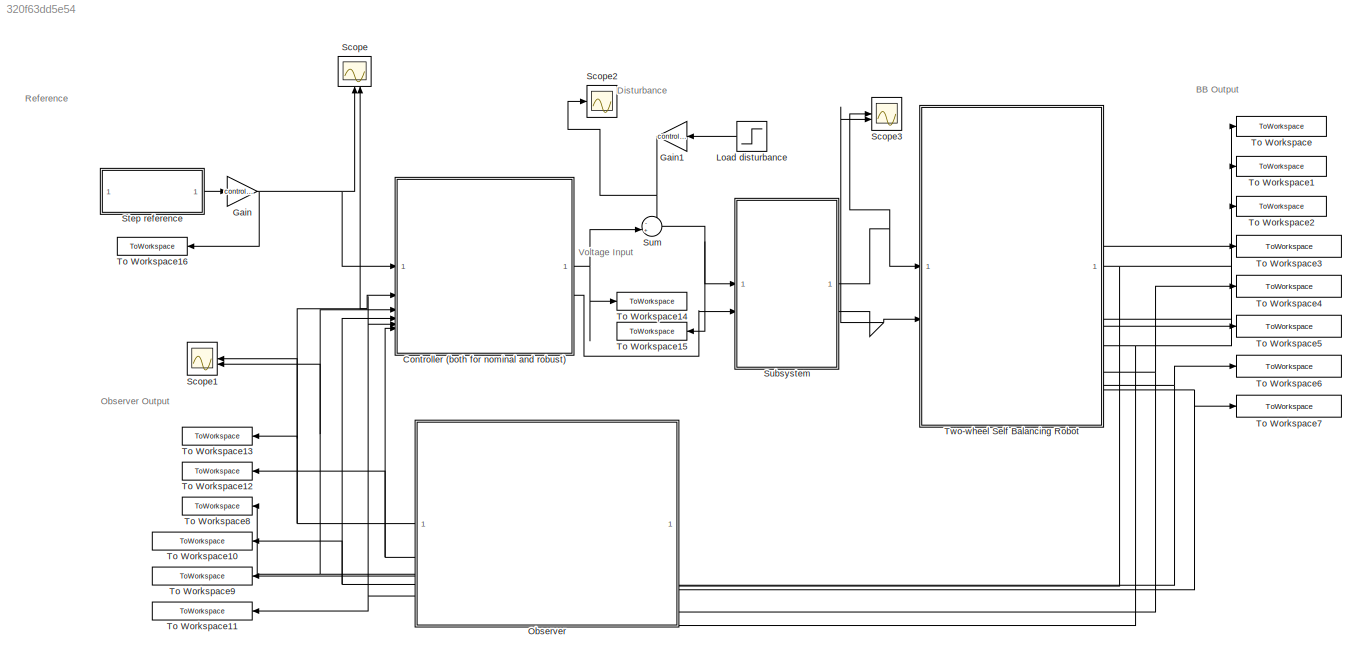
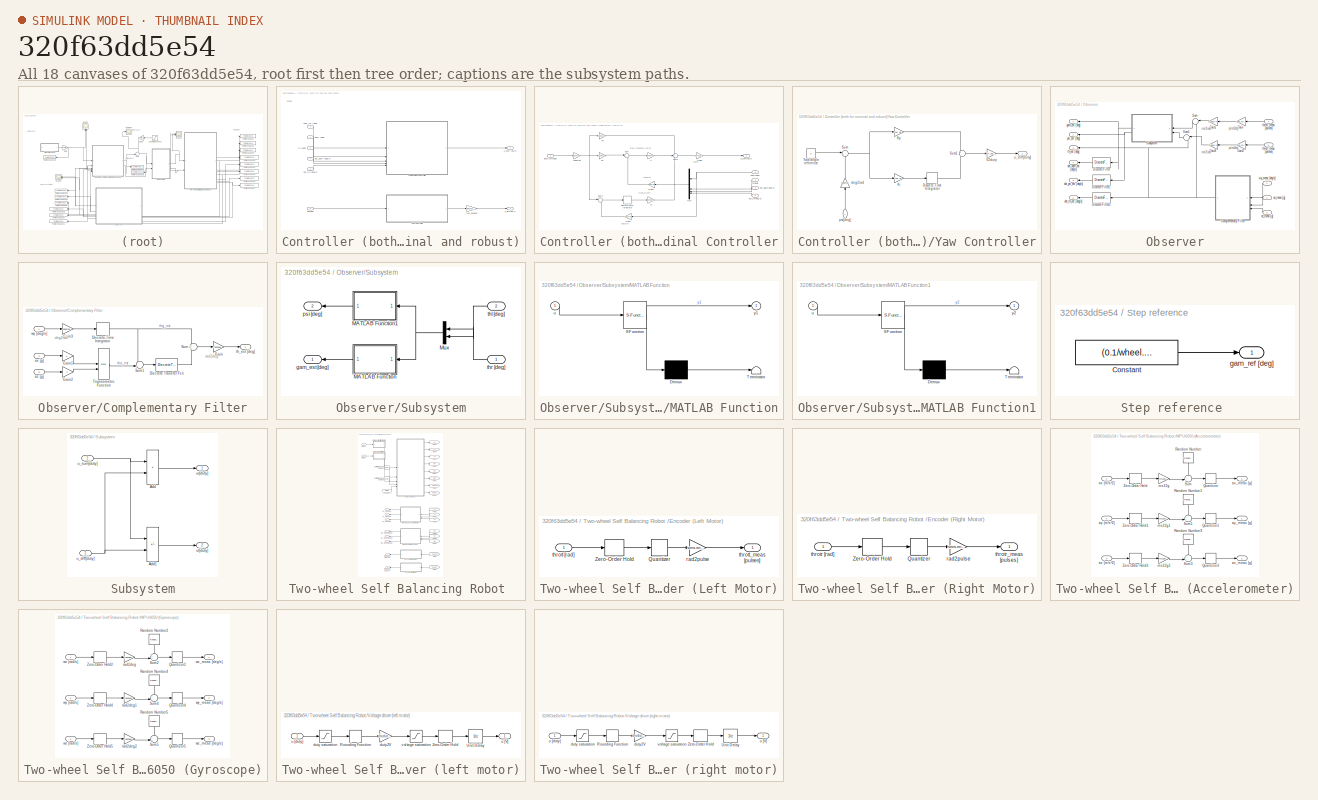
[diagram: thumbnail index - all 18 canvases of the model, root first then tree order]
MODEL slx_320f63dd5e54
KIND model
CONFIG AbsTol = auto
CONFIG EnableMultiTasking = off
CONFIG FixedStep = 0.01
CONFIG MaxStep = auto
CONFIG MinStep = auto
CONFIG RelTol = 1e-3
CONFIG SampleTimeConstraint = Unconstrained
CONFIG SolverName = ode15s
CONFIG StartTime = 0.0
CONFIG StopTime = 60
BLOCK [SubSystem] Controller (both for nominal and robust)
BLOCK [SubSystem] Controller (both for nominal and robust)/Longitudinal Controller
BLOCK [DiscreteIntegrator] Controller (both for nominal and robust)/Longitudinal Controller/Discrete-Time Integrator
  ICPrevOutput = DiscIntNeverNeededParam
  ICPrevScaledInput = DiscIntNeverNeededParam
  InitialConditionSetting = Auto
  IntegratorMethod = Accumulation: Forward Euler
  SampleTime = -1
BLOCK [Gain] Controller (both for nominal and robust)/Longitudinal Controller/Gain1
  Gain = deg2rad
  NameLocation = top
BLOCK [Gain] Controller (both for nominal and robust)/Longitudinal Controller/Gain3
  Gain = deg2rad
  NameLocation = top
BLOCK [Gain] Controller (both for nominal and robust)/Longitudinal Controller/Gain5
  Gain = drv.V2duty
BLOCK [Gain] Controller (both for nominal and robust)/Longitudinal Controller/K
  Gain = controller.K
  Multiplication = Matrix(K*u)
BLOCK [Gain] Controller (both for nominal and robust)/Longitudinal Controller/Ki
  Gain = controller.Ki
BLOCK [Mux] Controller (both for nominal and robust)/Longitudinal Controller/Mux
  DisplayOption = bar
BLOCK [Gain] Controller (both for nominal and robust)/Longitudinal Controller/NX
  Gain = controller.Nx
BLOCK [Gain] Controller (both for nominal and robust)/Longitudinal Controller/Nu
  Gain = controller.Nu
BLOCK [Sum] Controller (both for nominal and robust)/Longitudinal Controller/Sum
  Inputs = |+-
BLOCK [Sum] Controller (both for nominal and robust)/Longitudinal Controller/Sum1
  Inputs = +++
BLOCK [Sum] Controller (both for nominal and robust)/Longitudinal Controller/Sum2
  Inputs = |+-
BLOCK [Gain] Controller (both for nominal and robust)/Longitudinal Controller/deg2rad
  Gain = deg2rad
BLOCK [Inport] Controller (both for nominal and robust)/Longitudinal Controller/dot_gam[deg//s]
  Port = 4
BLOCK [Inport] Controller (both for nominal and robust)/Longitudinal Controller/dot_th[deg//s]
  Port = 5
BLOCK [Inport] Controller (both for nominal and robust)/Longitudinal Controller/gam[deg]
  Port = 2
BLOCK [Inport] Controller (both for nominal and robust)/Longitudinal Controller/gam_ref[deg]
BLOCK [Inport] Controller (both for nominal and robust)/Longitudinal Controller/th[deg]
  Port = 3
BLOCK [Outport] Controller (both for nominal and robust)/Longitudinal Controller/u_sum[duty]
BLOCK [Gain] Controller (both for nominal and robust)/YAW_ENABLE
  Gain = controller.yaw_enable
BLOCK [SubSystem] Controller (both for nominal and robust)/Yaw Controller
BLOCK [DiscreteIntegrator] Controller (both for nominal and robust)/Yaw Controller/Discrete-Time Integrator
  ICPrevOutput = DiscIntNeverNeededParam
  ICPrevScaledInput = DiscIntNeverNeededParam
  InitialConditionSetting = Auto
  SampleTime = Ts
BLOCK [Gain] Controller (both for nominal and robust)/Yaw Controller/Ki
  Gain = yaw.Ki
BLOCK [Gain] Controller (both for nominal and robust)/Yaw Controller/Kp
  Gain = yaw.Kp
BLOCK [Sum] Controller (both for nominal and robust)/Yaw Controller/Sum
  Inputs = |+-
BLOCK [Sum] Controller (both for nominal and robust)/Yaw Controller/Sum1
  Inputs = +|+
BLOCK [Gain] Controller (both for nominal and robust)/Yaw Controller/V2duty
  Gain = drv.V2duty
BLOCK [Constant] Controller (both for nominal and robust)/Yaw Controller/Yaw angle reference
  Value = 0
BLOCK [Gain] Controller (both for nominal and robust)/Yaw Controller/deg2rad
  Gain = deg2rad
  NameLocation = right
BLOCK [Inport] Controller (both for nominal and robust)/Yaw Controller/psi[deg]
  NameLocation = right
BLOCK [Outport] Controller (both for nominal and robust)/Yaw Controller/u_diff[duty]
BLOCK [Inport] Controller (both for nominal and robust)/dot_gam [deg//s]
  NameLocation = top
  Port = 4
BLOCK [Inport] Controller (both for nominal and robust)/dot_th [deg//s]
  NameLocation = top
  Port = 5
BLOCK [Inport] Controller (both for nominal and robust)/gam [deg]
  NameLocation = top
  Port = 2
BLOCK [Inport] Controller (both for nominal and robust)/gam_ref [deg]
BLOCK [Inport] Controller (both for nominal and robust)/psi[deg]
  Port = 6
BLOCK [Inport] Controller (both for nominal and robust)/th [deg]
  NameLocation = top
  Port = 3
BLOCK [Outport] Controller (both for nominal and robust)/u_diff[duty]
  Port = 2
BLOCK [Outport] Controller (both for nominal and robust)/u_sum [duty]
BLOCK [Gain] Gain
  Gain = controller.gam_ref
BLOCK [Gain] Gain1
  Gain = controller.disturbance
  NameLocation = top
BLOCK [Step] Load disturbance
  After = 5.0/drv.duty2V
  NameLocation = top
  SampleTime = Ts
  Time = 10
  VectorParams1D = off
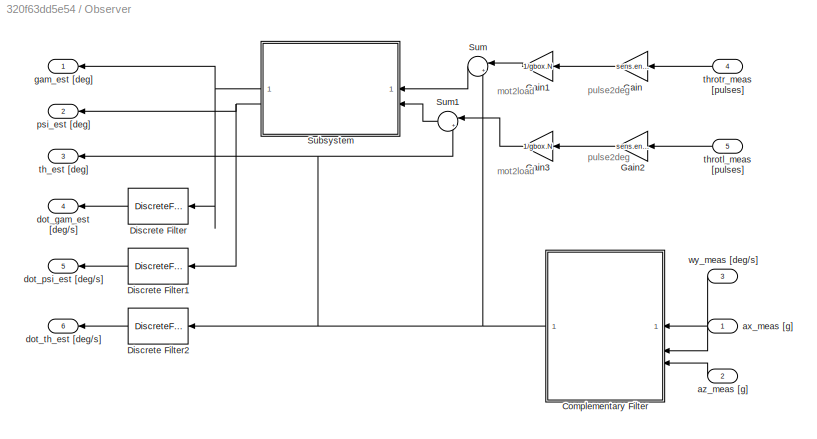
BLOCK [SubSystem] Observer
BLOCK [SubSystem] Observer/Complementary Filter
BLOCK [DiscreteTransferFcn] Observer/Complementary Filter/Discrete Transfer Fcn
  Denominator = filt.Hdenom
  InputPortMap = u0
  Numerator = filt.Hnum
  SampleTime = Ts
BLOCK [DiscreteIntegrator] Observer/Complementary Filter/Discrete-Time Integrator
  ICPrevOutput = DiscIntNeverNeededParam
  ICPrevScaledInput = DiscIntNeverNeededParam
  InitialConditionSetting = Auto
  SampleTime = Ts
BLOCK [Gain] Observer/Complementary Filter/Gain
  Gain = rad2deg
BLOCK [Gain] Observer/Complementary Filter/Gain1
BLOCK [Gain] Observer/Complementary Filter/Gain2
  Gain = -1
BLOCK [Gain] Observer/Complementary Filter/Gain3
  Gain = deg2rad
BLOCK [Sum] Observer/Complementary Filter/Sum
  Inputs = +|+
BLOCK [Sum] Observer/Complementary Filter/Sum1
  Inputs = -+|
BLOCK [Trigonometry] Observer/Complementary Filter/Trigonometric Function
  Operator = atan2
BLOCK [Inport] Observer/Complementary Filter/ax [g]
  Port = 2
BLOCK [Inport] Observer/Complementary Filter/az [g]
  Port = 3
BLOCK [Outport] Observer/Complementary Filter/th_est [deg]
BLOCK [Inport] Observer/Complementary Filter/wy [deg//s]
BLOCK [DiscreteFilter] Observer/Discrete Filter
  Denominator = [3*Ts]
  InputPortMap = u0
  Numerator = [1 0 0 -1]
  SampleTime = Ts
BLOCK [DiscreteFilter] Observer/Discrete Filter1
  Denominator = [3*Ts]
  InputPortMap = u0
  Numerator = [1 0 0 -1]
  SampleTime = Ts
BLOCK [DiscreteFilter] Observer/Discrete Filter2
  Denominator = [3*Ts]
  InputPortMap = u0
  Numerator = [1 0 0 -1]
  SampleTime = Ts
BLOCK [Gain] Observer/Gain
  Gain = sens.enc.pulse2deg
BLOCK [Gain] Observer/Gain1
  Gain = 1/gbox.N
BLOCK [Gain] Observer/Gain2
  Gain = sens.enc.pulse2deg
BLOCK [Gain] Observer/Gain3
  Gain = 1/gbox.N
BLOCK [SubSystem] Observer/Subsystem
BLOCK [SubSystem] Observer/Subsystem/MATLAB Function
  ErrorFcn = Stateflow.Translate.translate
  NameLocation = top
  PermitHierarchicalResolution = ExplicitOnly
  SFBlockType = MATLAB Function
  TreatAsAtomicUnit = on
BLOCK [Demux] Observer/Subsystem/MATLAB Function/ Demux 
  Outputs = 1
BLOCK [S-Function] Observer/Subsystem/MATLAB Function/ SFunction 
  EnableBusSupport = on
  FunctionName = sf_sfun
  PortCounts = [1 2]
  SFcnIsStateOwnerBlock = off
  SFunctionDeploymentMode = off
  Tag = Stateflow S-Function 2
BLOCK [Terminator] Observer/Subsystem/MATLAB Function/ Terminator 
BLOCK [Inport] Observer/Subsystem/MATLAB Function/u
BLOCK [Outport] Observer/Subsystem/MATLAB Function/y1
BLOCK [SubSystem] Observer/Subsystem/MATLAB Function1
  ErrorFcn = Stateflow.Translate.translate
  NameLocation = top
  PermitHierarchicalResolution = ExplicitOnly
  SFBlockType = MATLAB Function
  TreatAsAtomicUnit = on
BLOCK [Demux] Observer/Subsystem/MATLAB Function1/ Demux 
  Outputs = 1
BLOCK [S-Function] Observer/Subsystem/MATLAB Function1/ SFunction 
  EnableBusSupport = on
  FunctionName = sf_sfun
  PortCounts = [1 2]
  SFcnIsStateOwnerBlock = off
  SFunctionDeploymentMode = off
  Tag = Stateflow S-Function 1
BLOCK [Terminator] Observer/Subsystem/MATLAB Function1/ Terminator 
BLOCK [Inport] Observer/Subsystem/MATLAB Function1/u
BLOCK [Outport] Observer/Subsystem/MATLAB Function1/y2
BLOCK [Mux] Observer/Subsystem/Mux
  DisplayOption = bar
  Inputs = 2
  NameLocation = top
BLOCK [Outport] Observer/Subsystem/gam_est [deg]
  NameLocation = top
BLOCK [Outport] Observer/Subsystem/psi [deg]
  NameLocation = top
  Port = 2
BLOCK [Inport] Observer/Subsystem/thl [deg]
  NameLocation = top
  Port = 2
BLOCK [Inport] Observer/Subsystem/thr [deg]
  NameLocation = top
BLOCK [Sum] Observer/Sum
  Inputs = |++
BLOCK [Sum] Observer/Sum1
  Inputs = |++
BLOCK [Inport] Observer/ax_meas [g]
BLOCK [Inport] Observer/az_meas [g]
  Port = 2
BLOCK [Outport] Observer/dot_gam_est [deg//s]
  Port = 4
BLOCK [Outport] Observer/dot_psi_est [deg//s]
  Port = 5
BLOCK [Outport] Observer/dot_th_est [deg//s]
  Port = 6
BLOCK [Outport] Observer/gam_est [deg]
BLOCK [Outport] Observer/psi_est [deg]
  Port = 2
BLOCK [Outport] Observer/th_est [deg]
  Port = 3
BLOCK [Inport] Observer/throtl_meas [pulses]
  Port = 5
BLOCK [Inport] Observer/throtr_meas [pulses]
  Port = 4
BLOCK [Inport] Observer/wy_meas [deg//s]
  Port = 3
BLOCK [Scope] Scope
  Floating = off
  NameLocation = right
  NumInputPorts = 2
  ScopeSpecificationString = Simulink.scopes.TimeScopeBlockCfg('CurrentConfiguration', extmgr.ConfigurationSet(extmgr.Configuration('Core','General UI',true),extmgr.Configuration('Core','Source UI',true),extmgr.Configuration('Sources','WiredSimulink',true,'DataLoggingVariableName','ScopeData1'),extmgr.Configuration('Visuals','Time Domain',true,'SerializedDisplays',{struct('MinYLimReal','166.03874','MaxYLimReal','168.20658','Y...<+1421ch>
BLOCK [Scope] Scope1
  Floating = off
  NameLocation = top
  NumInputPorts = 2
  ScopeSpecificationString = Simulink.scopes.TimeScopeBlockCfg('CurrentConfiguration', extmgr.ConfigurationSet(extmgr.Configuration('Core','General UI',true),extmgr.Configuration('Core','Source UI',true),extmgr.Configuration('Sources','WiredSimulink',true,'DataLoggingVariableName','ScopeData1'),extmgr.Configuration('Visuals','Time Domain',true,'SerializedDisplays',{struct('MinYLimReal','-351.44874','MaxYLimReal','4092.77843',...<+1420ch>
BLOCK [Scope] Scope2
  Floating = off
  NumInputPorts = 1
  ScopeSpecificationString = Simulink.scopes.TimeScopeBlockCfg('CurrentConfiguration', extmgr.ConfigurationSet(extmgr.Configuration('Core','General UI',true),extmgr.Configuration('Core','Source UI',true),extmgr.Configuration('Sources','WiredSimulink',true,'DataLoggingVariableName','ScopeData1'),extmgr.Configuration('Visuals','Time Domain',true,'SerializedDisplays',{struct('MinYLimReal','100.94945','MaxYLimReal','120.86759','Y...<+1397ch>
BLOCK [Scope] Scope3
  Floating = off
  NumInputPorts = 2
  ScopeSpecificationString = Simulink.scopes.TimeScopeBlockCfg('CurrentConfiguration', extmgr.ConfigurationSet(extmgr.Configuration('Core','General UI',true),extmgr.Configuration('Core','Source UI',true),extmgr.Configuration('Sources','WiredSimulink',true,'DataLoggingVariableName','ScopeData2'),extmgr.Configuration('Visuals','Time Domain',true,'SerializedDisplays',{struct('MinYLimReal','-40.6654','MaxYLimReal','36.08804','YLa...<+1448ch>
BLOCK [SubSystem] Step reference 
BLOCK [Constant] Step reference /Constant
  Value = (0.1/wheel.r)*rad2deg
BLOCK [Outport] Step reference /gam_ref [deg]
BLOCK [SubSystem] Subsystem
BLOCK [Sum] Subsystem/Add
  IconShape = rectangular
BLOCK [Sum] Subsystem/Add1
  IconShape = rectangular
  Inputs = +-
BLOCK [Inport] Subsystem/u_diff[duty]
  Port = 2
BLOCK [Inport] Subsystem/u_sum[duty]
BLOCK [Outport] Subsystem/ul[duty]
  Port = 2
BLOCK [Outport] Subsystem/ur[duty]
BLOCK [Sum] Sum
  Inputs = -+|
BLOCK [ToWorkspace] To Workspace
  FixptAsFi = on
  MaxDataPoints = inf
  SampleTime = -1
  SaveFormat = Structure With Time
  VariableName = ax_meas_g
BLOCK [ToWorkspace] To Workspace1
  FixptAsFi = on
  MaxDataPoints = inf
  SampleTime = -1
  SaveFormat = Structure With Time
  VariableName = ay_meas_g
BLOCK [ToWorkspace] To Workspace10
  FixptAsFi = on
  MaxDataPoints = inf
  NameLocation = top
  SampleTime = -1
  SaveFormat = Structure With Time
  VariableName = dot_gam_est
BLOCK [ToWorkspace] To Workspace11
  FixptAsFi = on
  MaxDataPoints = inf
  NameLocation = top
  SampleTime = -1
  SaveFormat = Structure With Time
  VariableName = dot_th_est
BLOCK [ToWorkspace] To Workspace12
  FixptAsFi = on
  MaxDataPoints = inf
  NameLocation = top
  SampleTime = -1
  SaveFormat = Structure With Time
  VariableName = psi_est
BLOCK [ToWorkspace] To Workspace13
  FixptAsFi = on
  MaxDataPoints = inf
  NameLocation = top
  SampleTime = -1
  SaveFormat = Structure With Time
  VariableName = gam_est
BLOCK [ToWorkspace] To Workspace14
  FixptAsFi = on
  MaxDataPoints = inf
  SampleTime = -1
  SaveFormat = Structure With Time
  VariableName = u
BLOCK [ToWorkspace] To Workspace15
  FixptAsFi = on
  MaxDataPoints = inf
  NameLocation = top
  SampleTime = -1
  SaveFormat = Structure With Time
  VariableName = ud
BLOCK [ToWorkspace] To Workspace16
  FixptAsFi = on
  MaxDataPoints = inf
  NameLocation = top
  SampleTime = -1
  SaveFormat = Structure With Time
  VariableName = gam_ref
BLOCK [ToWorkspace] To Workspace2
  FixptAsFi = on
  MaxDataPoints = inf
  SampleTime = -1
  SaveFormat = Structure With Time
  VariableName = az_meas_g
BLOCK [ToWorkspace] To Workspace3
  FixptAsFi = on
  MaxDataPoints = inf
  SampleTime = -1
  SaveFormat = Structure With Time
  VariableName = wx_meas_degs
BLOCK [ToWorkspace] To Workspace4
  FixptAsFi = on
  MaxDataPoints = inf
  SampleTime = -1
  SaveFormat = Structure With Time
  VariableName = wy_meas_degs
BLOCK [ToWorkspace] To Workspace5
  FixptAsFi = on
  MaxDataPoints = inf
  SampleTime = -1
  SaveFormat = Structure With Time
  VariableName = wz_meas_degs
BLOCK [ToWorkspace] To Workspace6
  FixptAsFi = on
  MaxDataPoints = inf
  SampleTime = -1
  SaveFormat = Structure With Time
  VariableName = throtr_pulses
BLOCK [ToWorkspace] To Workspace7
  FixptAsFi = on
  MaxDataPoints = inf
  SampleTime = -1
  SaveFormat = Structure With Time
  VariableName = throts_pulses
BLOCK [ToWorkspace] To Workspace8
  FixptAsFi = on
  MaxDataPoints = inf
  NameLocation = top
  SampleTime = -1
  SaveFormat = Structure With Time
  VariableName = th_est
BLOCK [ToWorkspace] To Workspace9
  FixptAsFi = on
  MaxDataPoints = inf
  NameLocation = top
  SampleTime = -1
  SaveFormat = Structure With Time
  VariableName = dot_psi_est
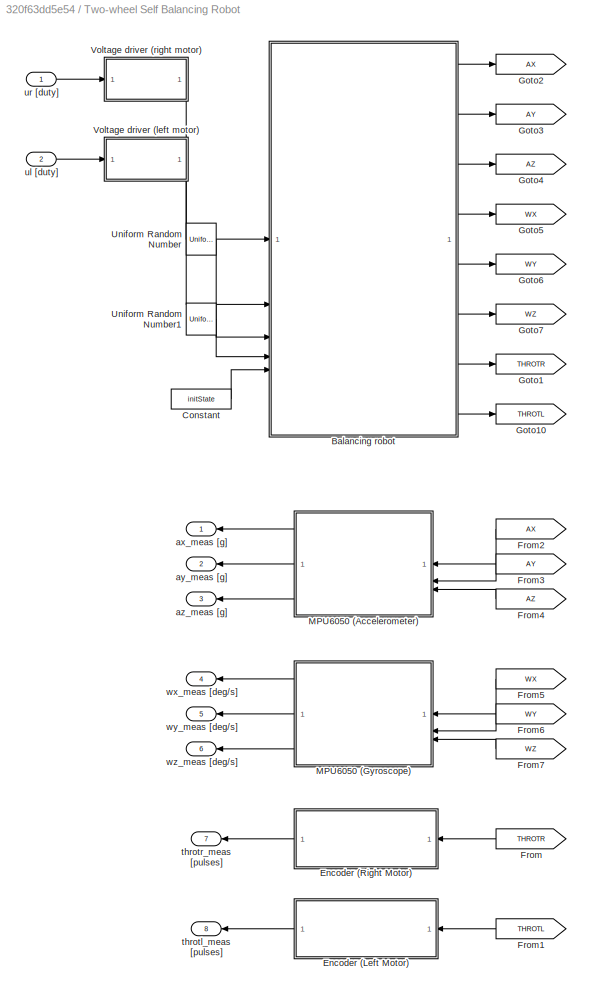
BLOCK [SubSystem] Two-wheel Self Balancing Robot 
BLOCK [ModelReference] Two-wheel Self Balancing Robot /Balancing robot
  CopyOfModelProtected = on
  ModelNameDialog = balrob3d_win64.slxp
  ModelReferenceVersion = 1.741
BLOCK [Constant] Two-wheel Self Balancing Robot /Constant
  Value = initState
BLOCK [SubSystem] Two-wheel Self Balancing Robot /Encoder (Left Motor)
BLOCK [Quantizer] Two-wheel Self Balancing Robot /Encoder (Left Motor)/Quantizer
  QuantizationInterval = sens.enc.pulse2rad
BLOCK [ZeroOrderHold] Two-wheel Self Balancing Robot /Encoder (Left Motor)/Zero-Order Hold
  SampleTime = Ts
BLOCK [Gain] Two-wheel Self Balancing Robot /Encoder (Left Motor)/rad2pulse
  Gain = sens.enc.rad2pulse
BLOCK [Inport] Two-wheel Self Balancing Robot /Encoder (Left Motor)/throtl [rad]
BLOCK [Outport] Two-wheel Self Balancing Robot /Encoder (Left Motor)/throtl_meas [pulses]
BLOCK [SubSystem] Two-wheel Self Balancing Robot /Encoder (Right Motor)
BLOCK [Quantizer] Two-wheel Self Balancing Robot /Encoder (Right Motor)/Quantizer
  QuantizationInterval = sens.enc.pulse2rad
BLOCK [ZeroOrderHold] Two-wheel Self Balancing Robot /Encoder (Right Motor)/Zero-Order Hold
  SampleTime = Ts
BLOCK [Gain] Two-wheel Self Balancing Robot /Encoder (Right Motor)/rad2pulse
  Gain = sens.enc.rad2pulse
BLOCK [Inport] Two-wheel Self Balancing Robot /Encoder (Right Motor)/throtr [rad]
BLOCK [Outport] Two-wheel Self Balancing Robot /Encoder (Right Motor)/throtr_meas [pulses]
BLOCK [From] Two-wheel Self Balancing Robot /From
  GotoTag = THROTR
  NameLocation = top
BLOCK [From] Two-wheel Self Balancing Robot /From1
  GotoTag = THROTL
  NameLocation = top
BLOCK [From] Two-wheel Self Balancing Robot /From2
  GotoTag = AX
  NameLocation = top
BLOCK [From] Two-wheel Self Balancing Robot /From3
  GotoTag = AY
  NameLocation = top
BLOCK [From] Two-wheel Self Balancing Robot /From4
  GotoTag = AZ
  NameLocation = top
BLOCK [From] Two-wheel Self Balancing Robot /From5
  GotoTag = WX
  NameLocation = top
BLOCK [From] Two-wheel Self Balancing Robot /From6
  GotoTag = WY
  NameLocation = top
BLOCK [From] Two-wheel Self Balancing Robot /From7
  GotoTag = WZ
  NameLocation = top
BLOCK [Goto] Two-wheel Self Balancing Robot /Goto1
  GotoTag = THROTR
BLOCK [Goto] Two-wheel Self Balancing Robot /Goto10
  GotoTag = THROTL
BLOCK [Goto] Two-wheel Self Balancing Robot /Goto2
  GotoTag = AX
BLOCK [Goto] Two-wheel Self Balancing Robot /Goto3
  GotoTag = AY
BLOCK [Goto] Two-wheel Self Balancing Robot /Goto4
  GotoTag = AZ
BLOCK [Goto] Two-wheel Self Balancing Robot /Goto5
  GotoTag = WX
BLOCK [Goto] Two-wheel Self Balancing Robot /Goto6
  GotoTag = WY
BLOCK [Goto] Two-wheel Self Balancing Robot /Goto7
  GotoTag = WZ
BLOCK [SubSystem] Two-wheel Self Balancing Robot /MPU6050 (Accelerometer)
BLOCK [Quantizer] Two-wheel Self Balancing Robot /MPU6050 (Accelerometer)/Quantizer
  QuantizationInterval = sens.mpu.acc.LSB2g
BLOCK [Quantizer] Two-wheel Self Balancing Robot /MPU6050 (Accelerometer)/Quantizer1
  QuantizationInterval = sens.mpu.acc.LSB2g
BLOCK [Quantizer] Two-wheel Self Balancing Robot /MPU6050 (Accelerometer)/Quantizer3
  QuantizationInterval = sens.mpu.acc.LSB2g
BLOCK [RandomNumber] Two-wheel Self Balancing Robot /MPU6050 (Accelerometer)/Random Number
  NameLocation = left
  SampleTime = Ts
  Seed = 1
  Variance = sens.mpu.acc.noisevar
BLOCK [RandomNumber] Two-wheel Self Balancing Robot /MPU6050 (Accelerometer)/Random Number1
  NameLocation = left
  SampleTime = Ts
  Seed = 10
  Variance = sens.mpu.acc.noisevar
BLOCK [RandomNumber] Two-wheel Self Balancing Robot /MPU6050 (Accelerometer)/Random Number3
  NameLocation = left
  SampleTime = Ts
  Seed = 100
  Variance = sens.mpu.acc.noisevar
BLOCK [Sum] Two-wheel Self Balancing Robot /MPU6050 (Accelerometer)/Sum
  Inputs = ++|
BLOCK [Sum] Two-wheel Self Balancing Robot /MPU6050 (Accelerometer)/Sum1
  Inputs = ++|
BLOCK [Sum] Two-wheel Self Balancing Robot /MPU6050 (Accelerometer)/Sum3
  Inputs = ++|
BLOCK [ZeroOrderHold] Two-wheel Self Balancing Robot /MPU6050 (Accelerometer)/Zero-Order Hold
  SampleTime = Ts
BLOCK [ZeroOrderHold] Two-wheel Self Balancing Robot /MPU6050 (Accelerometer)/Zero-Order Hold1
  SampleTime = Ts
BLOCK [ZeroOrderHold] Two-wheel Self Balancing Robot /MPU6050 (Accelerometer)/Zero-Order Hold3
  SampleTime = Ts
BLOCK [Inport] Two-wheel Self Balancing Robot /MPU6050 (Accelerometer)/ax [m//s^2]
BLOCK [Outport] Two-wheel Self Balancing Robot /MPU6050 (Accelerometer)/ax_meas [g]
BLOCK [Inport] Two-wheel Self Balancing Robot /MPU6050 (Accelerometer)/ay [m//s^2]
  Port = 2
BLOCK [Outport] Two-wheel Self Balancing Robot /MPU6050 (Accelerometer)/ay_meas [g]
  Port = 2
BLOCK [Inport] Two-wheel Self Balancing Robot /MPU6050 (Accelerometer)/az [m//s^2]
  Port = 3
BLOCK [Outport] Two-wheel Self Balancing Robot /MPU6050 (Accelerometer)/az_meas [g]
  Port = 3
BLOCK [Gain] Two-wheel Self Balancing Robot /MPU6050 (Accelerometer)/ms22g
  Gain = ms22g
BLOCK [Gain] Two-wheel Self Balancing Robot /MPU6050 (Accelerometer)/ms22g1
  Gain = ms22g
BLOCK [Gain] Two-wheel Self Balancing Robot /MPU6050 (Accelerometer)/ms22g2
  Gain = ms22g
BLOCK [SubSystem] Two-wheel Self Balancing Robot /MPU6050 (Gyroscope)
BLOCK [Quantizer] Two-wheel Self Balancing Robot /MPU6050 (Gyroscope)/Quantizer2
  QuantizationInterval = sens.mpu.gyro.LSB2degs
BLOCK [Quantizer] Two-wheel Self Balancing Robot /MPU6050 (Gyroscope)/Quantizer4
  QuantizationInterval = sens.mpu.gyro.LSB2degs
BLOCK [Quantizer] Two-wheel Self Balancing Robot /MPU6050 (Gyroscope)/Quantizer5
  QuantizationInterval = sens.mpu.gyro.LSB2degs
BLOCK [RandomNumber] Two-wheel Self Balancing Robot /MPU6050 (Gyroscope)/Random Number2
  NameLocation = left
  SampleTime = Ts
  Seed = 2
  Variance = sens.mpu.gyro.noisevar
BLOCK [RandomNumber] Two-wheel Self Balancing Robot /MPU6050 (Gyroscope)/Random Number4
  NameLocation = left
  SampleTime = Ts
  Seed = 20
  Variance = sens.mpu.gyro.noisevar
BLOCK [RandomNumber] Two-wheel Self Balancing Robot /MPU6050 (Gyroscope)/Random Number5
  NameLocation = left
  SampleTime = Ts
  Seed = 200
  Variance = sens.mpu.gyro.noisevar
BLOCK [Sum] Two-wheel Self Balancing Robot /MPU6050 (Gyroscope)/Sum2
  Inputs = ++|
BLOCK [Sum] Two-wheel Self Balancing Robot /MPU6050 (Gyroscope)/Sum4
  Inputs = ++|
BLOCK [Sum] Two-wheel Self Balancing Robot /MPU6050 (Gyroscope)/Sum5
  Inputs = ++|
BLOCK [ZeroOrderHold] Two-wheel Self Balancing Robot /MPU6050 (Gyroscope)/Zero-Order Hold2
  SampleTime = Ts
BLOCK [ZeroOrderHold] Two-wheel Self Balancing Robot /MPU6050 (Gyroscope)/Zero-Order Hold4
  SampleTime = Ts
BLOCK [ZeroOrderHold] Two-wheel Self Balancing Robot /MPU6050 (Gyroscope)/Zero-Order Hold5
  SampleTime = Ts
BLOCK [Gain] Two-wheel Self Balancing Robot /MPU6050 (Gyroscope)/rad2deg
  Gain = rad2deg
BLOCK [Gain] Two-wheel Self Balancing Robot /MPU6050 (Gyroscope)/rad2deg1
  Gain = rad2deg
BLOCK [Gain] Two-wheel Self Balancing Robot /MPU6050 (Gyroscope)/rad2deg2
  Gain = rad2deg
BLOCK [Inport] Two-wheel Self Balancing Robot /MPU6050 (Gyroscope)/wx [rad//s]
BLOCK [Outport] Two-wheel Self Balancing Robot /MPU6050 (Gyroscope)/wx_meas [deg//s]
BLOCK [Inport] Two-wheel Self Balancing Robot /MPU6050 (Gyroscope)/wy [rad//s]
  Port = 2
BLOCK [Outport] Two-wheel Self Balancing Robot /MPU6050 (Gyroscope)/wy_meas [deg//s]
  Port = 2
BLOCK [Inport] Two-wheel Self Balancing Robot /MPU6050 (Gyroscope)/wz [rad//s]
  Port = 3
BLOCK [Outport] Two-wheel Self Balancing Robot /MPU6050 (Gyroscope)/wz_meas [deg//s]
  Port = 3
BLOCK [UniformRandomNumber] Two-wheel Self Balancing Robot /Uniform Random Number
  Maximum = 1.3
  Minimum = 0.7
  SampleTime = 1
BLOCK [UniformRandomNumber] Two-wheel Self Balancing Robot /Uniform Random Number1
  Maximum = 1.3
  Minimum = 0.7
  SampleTime = 1
  Seed = 10
BLOCK [SubSystem] Two-wheel Self Balancing Robot /Voltage driver (left motor)
BLOCK [Rounding] Two-wheel Self Balancing Robot /Voltage driver (left motor)/Rounding Function
  Operator = fix
BLOCK [UnitDelay] Two-wheel Self Balancing Robot /Voltage driver (left motor)/Unit Delay
  HasFrameUpgradeWarning = on
  SampleTime = 1/drv.pwm.Fs
BLOCK [ZeroOrderHold] Two-wheel Self Balancing Robot /Voltage driver (left motor)/Zero-Order Hold
  SampleTime = Ts
BLOCK [Saturate] Two-wheel Self Balancing Robot /Voltage driver (left motor)/duty saturation
  LowerLimit = -255
  UpperLimit = 255
BLOCK [Gain] Two-wheel Self Balancing Robot /Voltage driver (left motor)/duty2V
  Gain = drv.duty2V
BLOCK [Outport] Two-wheel Self Balancing Robot /Voltage driver (left motor)/u [V]
BLOCK [Inport] Two-wheel Self Balancing Robot /Voltage driver (left motor)/u [duty]
BLOCK [Saturate] Two-wheel Self Balancing Robot /Voltage driver (left motor)/voltage saturation
  LowerLimit = -drv.Vbus
  UpperLimit = drv.Vbus
BLOCK [SubSystem] Two-wheel Self Balancing Robot /Voltage driver (right motor)
BLOCK [Rounding] Two-wheel Self Balancing Robot /Voltage driver (right motor)/Rounding Function
  Operator = fix
BLOCK [UnitDelay] Two-wheel Self Balancing Robot /Voltage driver (right motor)/Unit Delay
  HasFrameUpgradeWarning = on
  SampleTime = 1/drv.pwm.Fs
BLOCK [ZeroOrderHold] Two-wheel Self Balancing Robot /Voltage driver (right motor)/Zero-Order Hold
  SampleTime = Ts
BLOCK [Saturate] Two-wheel Self Balancing Robot /Voltage driver (right motor)/duty saturation
  LowerLimit = -255
  UpperLimit = 255
BLOCK [Gain] Two-wheel Self Balancing Robot /Voltage driver (right motor)/duty2V
  Gain = drv.duty2V
BLOCK [Outport] Two-wheel Self Balancing Robot /Voltage driver (right motor)/u [V]
BLOCK [Inport] Two-wheel Self Balancing Robot /Voltage driver (right motor)/u [duty]
BLOCK [Saturate] Two-wheel Self Balancing Robot /Voltage driver (right motor)/voltage saturation
  LowerLimit = -drv.Vbus
  UpperLimit = drv.Vbus
BLOCK [Outport] Two-wheel Self Balancing Robot /ax_meas [g]
BLOCK [Outport] Two-wheel Self Balancing Robot /ay_meas [g]
  Port = 2
BLOCK [Outport] Two-wheel Self Balancing Robot /az_meas [g]
  Port = 3
BLOCK [Outport] Two-wheel Self Balancing Robot /throtl_meas [pulses]
  Port = 8
BLOCK [Outport] Two-wheel Self Balancing Robot /throtr_meas [pulses]
  Port = 7
BLOCK [Inport] Two-wheel Self Balancing Robot /ul [duty]
  Port = 2
BLOCK [Inport] Two-wheel Self Balancing Robot /ur [duty]
BLOCK [Outport] Two-wheel Self Balancing Robot /wx_meas [deg//s]
  Port = 4
BLOCK [Outport] Two-wheel Self Balancing Robot /wy_meas [deg//s]
  Port = 5
BLOCK [Outport] Two-wheel Self Balancing Robot /wz_meas [deg//s]
  Port = 6
ANNOTATION (root): BB Output
ANNOTATION (root): Disturbance
ANNOTATION (root): Observer Output
ANNOTATION (root): Reference
ANNOTATION (root): Voltage Input
ANNOTATION Controller (both for nominal and robust): Enable
ANNOTATION Controller (both for nominal and robust)/Longitudinal Controller: Integral coeff
ANNOTATION Controller (both for nominal and robust)/Longitudinal Controller: State feedback matrix
ANNOTATION Controller (both for nominal and robust)/Longitudinal Controller: V2duty
ANNOTATION Controller (both for nominal and robust)/Longitudinal Controller: deg2rad
ANNOTATION Observer: mot2load
ANNOTATION Observer: pulse2deg
ANNOTATION Observer/Complementary Filter: deg2rad
ANNOTATION Observer/Complementary Filter: rad2deg
LINE Controller (both for nominal and robust)/Longitudinal Controller/Discrete-Time Integrator:1 -> Controller (both for nominal and robust)/Longitudinal Controller/Ki:1
LINE Controller (both for nominal and robust)/Longitudinal Controller/Gain1:1 -> Controller (both for nominal and robust)/Longitudinal Controller/Sum2:2
LINE Controller (both for nominal and robust)/Longitudinal Controller/Gain3:1 -> Controller (both for nominal and robust)/Longitudinal Controller/Sum:2
LINE Controller (both for nominal and robust)/Longitudinal Controller/Gain5:1 -> Controller (both for nominal and robust)/Longitudinal Controller/u_sum[duty]:1
LINE Controller (both for nominal and robust)/Longitudinal Controller/K:1 -> Controller (both for nominal and robust)/Longitudinal Controller/Sum1:2
LINE Controller (both for nominal and robust)/Longitudinal Controller/Ki:1 -> Controller (both for nominal and robust)/Longitudinal Controller/Sum1:3
LINE Controller (both for nominal and robust)/Longitudinal Controller/Mux:1 -> Controller (both for nominal and robust)/Longitudinal Controller/Gain3:1
LINE Controller (both for nominal and robust)/Longitudinal Controller/NX:1 -> Controller (both for nominal and robust)/Longitudinal Controller/Sum:1
LINE Controller (both for nominal and robust)/Longitudinal Controller/Nu:1 -> Controller (both for nominal and robust)/Longitudinal Controller/Sum1:1
LINE Controller (both for nominal and robust)/Longitudinal Controller/Sum1:1 -> Controller (both for nominal and robust)/Longitudinal Controller/Gain5:1
LINE Controller (both for nominal and robust)/Longitudinal Controller/Sum2:1 -> Controller (both for nominal and robust)/Longitudinal Controller/Discrete-Time Integrator:1
LINE Controller (both for nominal and robust)/Longitudinal Controller/Sum:1 -> Controller (both for nominal and robust)/Longitudinal Controller/K:1
NET Controller (both for nominal and robust)/Longitudinal Controller/deg2rad:1 -> Controller (both for nominal and robust)/Longitudinal Controller/NX:1, Controller (both for nominal and robust)/Longitudinal Controller/Nu:1, Controller (both for nominal and robust)/Longitudinal Controller/Sum2:1
LINE Controller (both for nominal and robust)/Longitudinal Controller/dot_gam[deg//s]:1 -> Controller (both for nominal and robust)/Longitudinal Controller/Mux:3
LINE Controller (both for nominal and robust)/Longitudinal Controller/dot_th[deg//s]:1 -> Controller (both for nominal and robust)/Longitudinal Controller/Mux:4
NET Controller (both for nominal and robust)/Longitudinal Controller/gam[deg]:1 -> Controller (both for nominal and robust)/Longitudinal Controller/Gain1:1, Controller (both for nominal and robust)/Longitudinal Controller/Mux:1
LINE Controller (both for nominal and robust)/Longitudinal Controller/gam_ref[deg]:1 -> Controller (both for nominal and robust)/Longitudinal Controller/deg2rad:1
LINE Controller (both for nominal and robust)/Longitudinal Controller/th[deg]:1 -> Controller (both for nominal and robust)/Longitudinal Controller/Mux:2
LINE Controller (both for nominal and robust)/Longitudinal Controller:1 -> Controller (both for nominal and robust)/u_sum [duty]:1
LINE Controller (both for nominal and robust)/YAW_ENABLE:1 -> Controller (both for nominal and robust)/u_diff[duty]:1
LINE Controller (both for nominal and robust)/Yaw Controller/Discrete-Time Integrator:1 -> Controller (both for nominal and robust)/Yaw Controller/Sum1:2
LINE Controller (both for nominal and robust)/Yaw Controller/Ki:1 -> Controller (both for nominal and robust)/Yaw Controller/Discrete-Time Integrator:1
LINE Controller (both for nominal and robust)/Yaw Controller/Kp:1 -> Controller (both for nominal and robust)/Yaw Controller/Sum1:1
LINE Controller (both for nominal and robust)/Yaw Controller/Sum1:1 -> Controller (both for nominal and robust)/Yaw Controller/V2duty:1
NET Controller (both for nominal and robust)/Yaw Controller/Sum:1 -> Controller (both for nominal and robust)/Yaw Controller/Ki:1, Controller (both for nominal and robust)/Yaw Controller/Kp:1
LINE Controller (both for nominal and robust)/Yaw Controller/V2duty:1 -> Controller (both for nominal and robust)/Yaw Controller/u_diff[duty]:1
LINE Controller (both for nominal and robust)/Yaw Controller/Yaw angle reference:1 -> Controller (both for nominal and robust)/Yaw Controller/Sum:1
LINE Controller (both for nominal and robust)/Yaw Controller/deg2rad:1 -> Controller (both for nominal and robust)/Yaw Controller/Sum:2
LINE Controller (both for nominal and robust)/Yaw Controller/psi[deg]:1 -> Controller (both for nominal and robust)/Yaw Controller/deg2rad:1
LINE Controller (both for nominal and robust)/Yaw Controller:1 -> Controller (both for nominal and robust)/YAW_ENABLE:1
LINE Controller (both for nominal and robust)/dot_gam [deg//s]:1 -> Controller (both for nominal and robust)/Longitudinal Controller:4
LINE Controller (both for nominal and robust)/dot_th [deg//s]:1 -> Controller (both for nominal and robust)/Longitudinal Controller:5
LINE Controller (both for nominal and robust)/gam [deg]:1 -> Controller (both for nominal and robust)/Longitudinal Controller:2
LINE Controller (both for nominal and robust)/gam_ref [deg]:1 -> Controller (both for nominal and robust)/Longitudinal Controller:1
LINE Controller (both for nominal and robust)/psi[deg]:1 -> Controller (both for nominal and robust)/Yaw Controller:1
LINE Controller (both for nominal and robust)/th [deg]:1 -> Controller (both for nominal and robust)/Longitudinal Controller:3
NET Controller (both for nominal and robust):1 -> Sum:2, To Workspace14:1
LINE Controller (both for nominal and robust):2 -> Subsystem:2
NET Gain1:1 -> Scope2:1, Sum:1
NET Gain:1 -> Controller (both for nominal and robust):1, Scope:1, To Workspace16:1
LINE Load disturbance:1 -> Gain1:1
LINE Observer/Complementary Filter/Discrete Transfer Fcn:1 -> Observer/Complementary Filter/Sum:2
NET Observer/Complementary Filter/Discrete-Time Integrator:1 -> Observer/Complementary Filter/Sum1:1, Observer/Complementary Filter/Sum:1
LINE Observer/Complementary Filter/Gain1:1 -> Observer/Complementary Filter/Trigonometric Function:1
LINE Observer/Complementary Filter/Gain2:1 -> Observer/Complementary Filter/Trigonometric Function:2
LINE Observer/Complementary Filter/Gain3:1 -> Observer/Complementary Filter/Discrete-Time Integrator:1
LINE Observer/Complementary Filter/Gain:1 -> Observer/Complementary Filter/th_est [deg]:1
LINE Observer/Complementary Filter/Sum1:1 -> Observer/Complementary Filter/Discrete Transfer Fcn:1
LINE Observer/Complementary Filter/Sum:1 -> Observer/Complementary Filter/Gain:1
LINE Observer/Complementary Filter/Trigonometric Function:1 -> Observer/Complementary Filter/Sum1:2
LINE Observer/Complementary Filter/ax [g]:1 -> Observer/Complementary Filter/Gain1:1
LINE Observer/Complementary Filter/az [g]:1 -> Observer/Complementary Filter/Gain2:1
LINE Observer/Complementary Filter/wy [deg//s]:1 -> Observer/Complementary Filter/Gain3:1
NET Observer/Complementary Filter:1 -> Observer/Discrete Filter2:1, Observer/Sum1:2, Observer/Sum:2, Observer/th_est [deg]:1
LINE Observer/Discrete Filter1:1 -> Observer/dot_psi_est [deg//s]:1
LINE Observer/Discrete Filter2:1 -> Observer/dot_th_est [deg//s]:1
LINE Observer/Discrete Filter:1 -> Observer/dot_gam_est [deg//s]:1
LINE Observer/Gain1:1 -> Observer/Sum:1
LINE Observer/Gain2:1 -> Observer/Gain3:1
LINE Observer/Gain3:1 -> Observer/Sum1:1
LINE Observer/Gain:1 -> Observer/Gain1:1
LINE Observer/Subsystem/MATLAB Function1:1 -> Observer/Subsystem/psi [deg]:1
LINE Observer/Subsystem/MATLAB Function:1 -> Observer/Subsystem/gam_est [deg]:1
NET Observer/Subsystem/Mux:1 -> Observer/Subsystem/MATLAB Function1:1, Observer/Subsystem/MATLAB Function:1
LINE Observer/Subsystem/thl [deg]:1 -> Observer/Subsystem/Mux:2
LINE Observer/Subsystem/thr [deg]:1 -> Observer/Subsystem/Mux:1
NET Observer/Subsystem:1 -> Observer/Discrete Filter:1, Observer/gam_est [deg]:1
NET Observer/Subsystem:2 -> Observer/Discrete Filter1:1, Observer/psi_est [deg]:1
LINE Observer/Sum1:1 -> Observer/Subsystem:2
LINE Observer/Sum:1 -> Observer/Subsystem:1
LINE Observer/ax_meas [g]:1 -> Observer/Complementary Filter:2
LINE Observer/az_meas [g]:1 -> Observer/Complementary Filter:3
LINE Observer/throtl_meas [pulses]:1 -> Observer/Gain2:1
LINE Observer/throtr_meas [pulses]:1 -> Observer/Gain:1
LINE Observer/wy_meas [deg//s]:1 -> Observer/Complementary Filter:1
NET Observer:1 -> Controller (both for nominal and robust):2, Scope1:1, Scope:2, To Workspace13:1
NET Observer:2 -> Controller (both for nominal and robust):6, To Workspace12:1
NET Observer:3 -> Controller (both for nominal and robust):3, Scope1:2, To Workspace8:1
NET Observer:4 -> Controller (both for nominal and robust):4, To Workspace10:1
LINE Observer:5 -> To Workspace9:1
NET Observer:6 -> Controller (both for nominal and robust):5, To Workspace11:1
LINE Step reference /Constant:1 -> Step reference /gam_ref [deg]:1
LINE Step reference :1 -> Gain:1
LINE Subsystem/Add1:1 -> Subsystem/ul[duty]:1
LINE Subsystem/Add:1 -> Subsystem/ur[duty]:1
NET Subsystem/u_diff[duty]:1 -> Subsystem/Add1:2, Subsystem/Add:2
NET Subsystem/u_sum[duty]:1 -> Subsystem/Add1:1, Subsystem/Add:1
NET Subsystem:1 -> Scope3:1, Two-wheel Self Balancing Robot :1
NET Subsystem:2 -> Scope3:2, Two-wheel Self Balancing Robot :2
NET Sum:1 -> Subsystem:1, To Workspace15:1
LINE Two-wheel Self Balancing Robot /Balancing robot:1 -> Two-wheel Self Balancing Robot /Goto2:1
LINE Two-wheel Self Balancing Robot /Balancing robot:2 -> Two-wheel Self Balancing Robot /Goto3:1
LINE Two-wheel Self Balancing Robot /Balancing robot:3 -> Two-wheel Self Balancing Robot /Goto4:1
LINE Two-wheel Self Balancing Robot /Balancing robot:4 -> Two-wheel Self Balancing Robot /Goto5:1
LINE Two-wheel Self Balancing Robot /Balancing robot:5 -> Two-wheel Self Balancing Robot /Goto6:1
LINE Two-wheel Self Balancing Robot /Balancing robot:6 -> Two-wheel Self Balancing Robot /Goto7:1
LINE Two-wheel Self Balancing Robot /Balancing robot:7 -> Two-wheel Self Balancing Robot /Goto1:1
LINE Two-wheel Self Balancing Robot /Balancing robot:8 -> Two-wheel Self Balancing Robot /Goto10:1
LINE Two-wheel Self Balancing Robot /Constant:1 -> Two-wheel Self Balancing Robot /Balancing robot:5
LINE Two-wheel Self Balancing Robot /Encoder (Left Motor)/Quantizer:1 -> Two-wheel Self Balancing Robot /Encoder (Left Motor)/rad2pulse:1
LINE Two-wheel Self Balancing Robot /Encoder (Left Motor)/Zero-Order Hold:1 -> Two-wheel Self Balancing Robot /Encoder (Left Motor)/Quantizer:1
LINE Two-wheel Self Balancing Robot /Encoder (Left Motor)/rad2pulse:1 -> Two-wheel Self Balancing Robot /Encoder (Left Motor)/throtl_meas [pulses]:1
LINE Two-wheel Self Balancing Robot /Encoder (Left Motor)/throtl [rad]:1 -> Two-wheel Self Balancing Robot /Encoder (Left Motor)/Zero-Order Hold:1
LINE Two-wheel Self Balancing Robot /Encoder (Left Motor):1 -> Two-wheel Self Balancing Robot /throtl_meas [pulses]:1
LINE Two-wheel Self Balancing Robot /Encoder (Right Motor)/Quantizer:1 -> Two-wheel Self Balancing Robot /Encoder (Right Motor)/rad2pulse:1
LINE Two-wheel Self Balancing Robot /Encoder (Right Motor)/Zero-Order Hold:1 -> Two-wheel Self Balancing Robot /Encoder (Right Motor)/Quantizer:1
LINE Two-wheel Self Balancing Robot /Encoder (Right Motor)/rad2pulse:1 -> Two-wheel Self Balancing Robot /Encoder (Right Motor)/throtr_meas [pulses]:1
LINE Two-wheel Self Balancing Robot /Encoder (Right Motor)/throtr [rad]:1 -> Two-wheel Self Balancing Robot /Encoder (Right Motor)/Zero-Order Hold:1
LINE Two-wheel Self Balancing Robot /Encoder (Right Motor):1 -> Two-wheel Self Balancing Robot /throtr_meas [pulses]:1
LINE Two-wheel Self Balancing Robot /From1:1 -> Two-wheel Self Balancing Robot /Encoder (Left Motor):1
LINE Two-wheel Self Balancing Robot /From2:1 -> Two-wheel Self Balancing Robot /MPU6050 (Accelerometer):1
LINE Two-wheel Self Balancing Robot /From3:1 -> Two-wheel Self Balancing Robot /MPU6050 (Accelerometer):2
LINE Two-wheel Self Balancing Robot /From4:1 -> Two-wheel Self Balancing Robot /MPU6050 (Accelerometer):3
LINE Two-wheel Self Balancing Robot /From5:1 -> Two-wheel Self Balancing Robot /MPU6050 (Gyroscope):1
LINE Two-wheel Self Balancing Robot /From6:1 -> Two-wheel Self Balancing Robot /MPU6050 (Gyroscope):2
LINE Two-wheel Self Balancing Robot /From7:1 -> Two-wheel Self Balancing Robot /MPU6050 (Gyroscope):3
LINE Two-wheel Self Balancing Robot /From:1 -> Two-wheel Self Balancing Robot /Encoder (Right Motor):1
LINE Two-wheel Self Balancing Robot /MPU6050 (Accelerometer)/Quantizer1:1 -> Two-wheel Self Balancing Robot /MPU6050 (Accelerometer)/ay_meas [g]:1
LINE Two-wheel Self Balancing Robot /MPU6050 (Accelerometer)/Quantizer3:1 -> Two-wheel Self Balancing Robot /MPU6050 (Accelerometer)/az_meas [g]:1
LINE Two-wheel Self Balancing Robot /MPU6050 (Accelerometer)/Quantizer:1 -> Two-wheel Self Balancing Robot /MPU6050 (Accelerometer)/ax_meas [g]:1
LINE Two-wheel Self Balancing Robot /MPU6050 (Accelerometer)/Random Number1:1 -> Two-wheel Self Balancing Robot /MPU6050 (Accelerometer)/Sum1:1
LINE Two-wheel Self Balancing Robot /MPU6050 (Accelerometer)/Random Number3:1 -> Two-wheel Self Balancing Robot /MPU6050 (Accelerometer)/Sum3:1
LINE Two-wheel Self Balancing Robot /MPU6050 (Accelerometer)/Random Number:1 -> Two-wheel Self Balancing Robot /MPU6050 (Accelerometer)/Sum:1
LINE Two-wheel Self Balancing Robot /MPU6050 (Accelerometer)/Sum1:1 -> Two-wheel Self Balancing Robot /MPU6050 (Accelerometer)/Quantizer1:1
LINE Two-wheel Self Balancing Robot /MPU6050 (Accelerometer)/Sum3:1 -> Two-wheel Self Balancing Robot /MPU6050 (Accelerometer)/Quantizer3:1
LINE Two-wheel Self Balancing Robot /MPU6050 (Accelerometer)/Sum:1 -> Two-wheel Self Balancing Robot /MPU6050 (Accelerometer)/Quantizer:1
LINE Two-wheel Self Balancing Robot /MPU6050 (Accelerometer)/Zero-Order Hold1:1 -> Two-wheel Self Balancing Robot /MPU6050 (Accelerometer)/ms22g1:1
LINE Two-wheel Self Balancing Robot /MPU6050 (Accelerometer)/Zero-Order Hold3:1 -> Two-wheel Self Balancing Robot /MPU6050 (Accelerometer)/ms22g2:1
LINE Two-wheel Self Balancing Robot /MPU6050 (Accelerometer)/Zero-Order Hold:1 -> Two-wheel Self Balancing Robot /MPU6050 (Accelerometer)/ms22g:1
LINE Two-wheel Self Balancing Robot /MPU6050 (Accelerometer)/ax [m//s^2]:1 -> Two-wheel Self Balancing Robot /MPU6050 (Accelerometer)/Zero-Order Hold:1
LINE Two-wheel Self Balancing Robot /MPU6050 (Accelerometer)/ay [m//s^2]:1 -> Two-wheel Self Balancing Robot /MPU6050 (Accelerometer)/Zero-Order Hold1:1
LINE Two-wheel Self Balancing Robot /MPU6050 (Accelerometer)/az [m//s^2]:1 -> Two-wheel Self Balancing Robot /MPU6050 (Accelerometer)/Zero-Order Hold3:1
LINE Two-wheel Self Balancing Robot /MPU6050 (Accelerometer)/ms22g1:1 -> Two-wheel Self Balancing Robot /MPU6050 (Accelerometer)/Sum1:2
LINE Two-wheel Self Balancing Robot /MPU6050 (Accelerometer)/ms22g2:1 -> Two-wheel Self Balancing Robot /MPU6050 (Accelerometer)/Sum3:2
LINE Two-wheel Self Balancing Robot /MPU6050 (Accelerometer)/ms22g:1 -> Two-wheel Self Balancing Robot /MPU6050 (Accelerometer)/Sum:2
LINE Two-wheel Self Balancing Robot /MPU6050 (Accelerometer):1 -> Two-wheel Self Balancing Robot /ax_meas [g]:1
LINE Two-wheel Self Balancing Robot /MPU6050 (Accelerometer):2 -> Two-wheel Self Balancing Robot /ay_meas [g]:1
LINE Two-wheel Self Balancing Robot /MPU6050 (Accelerometer):3 -> Two-wheel Self Balancing Robot /az_meas [g]:1
LINE Two-wheel Self Balancing Robot /MPU6050 (Gyroscope)/Quantizer2:1 -> Two-wheel Self Balancing Robot /MPU6050 (Gyroscope)/wx_meas [deg//s]:1
LINE Two-wheel Self Balancing Robot /MPU6050 (Gyroscope)/Quantizer4:1 -> Two-wheel Self Balancing Robot /MPU6050 (Gyroscope)/wy_meas [deg//s]:1
LINE Two-wheel Self Balancing Robot /MPU6050 (Gyroscope)/Quantizer5:1 -> Two-wheel Self Balancing Robot /MPU6050 (Gyroscope)/wz_meas [deg//s]:1
LINE Two-wheel Self Balancing Robot /MPU6050 (Gyroscope)/Random Number2:1 -> Two-wheel Self Balancing Robot /MPU6050 (Gyroscope)/Sum2:1
LINE Two-wheel Self Balancing Robot /MPU6050 (Gyroscope)/Random Number4:1 -> Two-wheel Self Balancing Robot /MPU6050 (Gyroscope)/Sum4:1
LINE Two-wheel Self Balancing Robot /MPU6050 (Gyroscope)/Random Number5:1 -> Two-wheel Self Balancing Robot /MPU6050 (Gyroscope)/Sum5:1
LINE Two-wheel Self Balancing Robot /MPU6050 (Gyroscope)/Sum2:1 -> Two-wheel Self Balancing Robot /MPU6050 (Gyroscope)/Quantizer2:1
LINE Two-wheel Self Balancing Robot /MPU6050 (Gyroscope)/Sum4:1 -> Two-wheel Self Balancing Robot /MPU6050 (Gyroscope)/Quantizer4:1
LINE Two-wheel Self Balancing Robot /MPU6050 (Gyroscope)/Sum5:1 -> Two-wheel Self Balancing Robot /MPU6050 (Gyroscope)/Quantizer5:1
LINE Two-wheel Self Balancing Robot /MPU6050 (Gyroscope)/Zero-Order Hold2:1 -> Two-wheel Self Balancing Robot /MPU6050 (Gyroscope)/rad2deg:1
LINE Two-wheel Self Balancing Robot /MPU6050 (Gyroscope)/Zero-Order Hold4:1 -> Two-wheel Self Balancing Robot /MPU6050 (Gyroscope)/rad2deg1:1
LINE Two-wheel Self Balancing Robot /MPU6050 (Gyroscope)/Zero-Order Hold5:1 -> Two-wheel Self Balancing Robot /MPU6050 (Gyroscope)/rad2deg2:1
LINE Two-wheel Self Balancing Robot /MPU6050 (Gyroscope)/rad2deg1:1 -> Two-wheel Self Balancing Robot /MPU6050 (Gyroscope)/Sum4:2
LINE Two-wheel Self Balancing Robot /MPU6050 (Gyroscope)/rad2deg2:1 -> Two-wheel Self Balancing Robot /MPU6050 (Gyroscope)/Sum5:2
LINE Two-wheel Self Balancing Robot /MPU6050 (Gyroscope)/rad2deg:1 -> Two-wheel Self Balancing Robot /MPU6050 (Gyroscope)/Sum2:2
LINE Two-wheel Self Balancing Robot /MPU6050 (Gyroscope)/wx [rad//s]:1 -> Two-wheel Self Balancing Robot /MPU6050 (Gyroscope)/Zero-Order Hold2:1
LINE Two-wheel Self Balancing Robot /MPU6050 (Gyroscope)/wy [rad//s]:1 -> Two-wheel Self Balancing Robot /MPU6050 (Gyroscope)/Zero-Order Hold4:1
LINE Two-wheel Self Balancing Robot /MPU6050 (Gyroscope)/wz [rad//s]:1 -> Two-wheel Self Balancing Robot /MPU6050 (Gyroscope)/Zero-Order Hold5:1
LINE Two-wheel Self Balancing Robot /MPU6050 (Gyroscope):1 -> Two-wheel Self Balancing Robot /wx_meas [deg//s]:1
LINE Two-wheel Self Balancing Robot /MPU6050 (Gyroscope):2 -> Two-wheel Self Balancing Robot /wy_meas [deg//s]:1
LINE Two-wheel Self Balancing Robot /MPU6050 (Gyroscope):3 -> Two-wheel Self Balancing Robot /wz_meas [deg//s]:1
LINE Two-wheel Self Balancing Robot /Uniform Random Number1:1 -> Two-wheel Self Balancing Robot /Balancing robot:4
LINE Two-wheel Self Balancing Robot /Uniform Random Number:1 -> Two-wheel Self Balancing Robot /Balancing robot:3
LINE Two-wheel Self Balancing Robot /Voltage driver (left motor)/Rounding Function:1 -> Two-wheel Self Balancing Robot /Voltage driver (left motor)/duty2V:1
LINE Two-wheel Self Balancing Robot /Voltage driver (left motor)/Unit Delay:1 -> Two-wheel Self Balancing Robot /Voltage driver (left motor)/u [V]:1
LINE Two-wheel Self Balancing Robot /Voltage driver (left motor)/Zero-Order Hold:1 -> Two-wheel Self Balancing Robot /Voltage driver (left motor)/Unit Delay:1
LINE Two-wheel Self Balancing Robot /Voltage driver (left motor)/duty saturation:1 -> Two-wheel Self Balancing Robot /Voltage driver (left motor)/Rounding Function:1
LINE Two-wheel Self Balancing Robot /Voltage driver (left motor)/duty2V:1 -> Two-wheel Self Balancing Robot /Voltage driver (left motor)/voltage saturation:1
LINE Two-wheel Self Balancing Robot /Voltage driver (left motor)/u [duty]:1 -> Two-wheel Self Balancing Robot /Voltage driver (left motor)/duty saturation:1
LINE Two-wheel Self Balancing Robot /Voltage driver (left motor)/voltage saturation:1 -> Two-wheel Self Balancing Robot /Voltage driver (left motor)/Zero-Order Hold:1
LINE Two-wheel Self Balancing Robot /Voltage driver (left motor):1 -> Two-wheel Self Balancing Robot /Balancing robot:2
LINE Two-wheel Self Balancing Robot /Voltage driver (right motor)/Rounding Function:1 -> Two-wheel Self Balancing Robot /Voltage driver (right motor)/duty2V:1
LINE Two-wheel Self Balancing Robot /Voltage driver (right motor)/Unit Delay:1 -> Two-wheel Self Balancing Robot /Voltage driver (right motor)/u [V]:1
LINE Two-wheel Self Balancing Robot /Voltage driver (right motor)/Zero-Order Hold:1 -> Two-wheel Self Balancing Robot /Voltage driver (right motor)/Unit Delay:1
LINE Two-wheel Self Balancing Robot /Voltage driver (right motor)/duty saturation:1 -> Two-wheel Self Balancing Robot /Voltage driver (right motor)/Rounding Function:1
LINE Two-wheel Self Balancing Robot /Voltage driver (right motor)/duty2V:1 -> Two-wheel Self Balancing Robot /Voltage driver (right motor)/voltage saturation:1
LINE Two-wheel Self Balancing Robot /Voltage driver (right motor)/u [duty]:1 -> Two-wheel Self Balancing Robot /Voltage driver (right motor)/duty saturation:1
LINE Two-wheel Self Balancing Robot /Voltage driver (right motor)/voltage saturation:1 -> Two-wheel Self Balancing Robot /Voltage driver (right motor)/Zero-Order Hold:1
LINE Two-wheel Self Balancing Robot /Voltage driver (right motor):1 -> Two-wheel Self Balancing Robot /Balancing robot:1
LINE Two-wheel Self Balancing Robot /ul [duty]:1 -> Two-wheel Self Balancing Robot /Voltage driver (left motor):1
LINE Two-wheel Self Balancing Robot /ur [duty]:1 -> Two-wheel Self Balancing Robot /Voltage driver (right motor):1
NET Two-wheel Self Balancing Robot :1 -> Observer:1, To Workspace:1
LINE Two-wheel Self Balancing Robot :2 -> To Workspace1:1
NET Two-wheel Self Balancing Robot :3 -> Observer:2, To Workspace2:1
LINE Two-wheel Self Balancing Robot :4 -> To Workspace3:1
NET Two-wheel Self Balancing Robot :5 -> Observer:3, To Workspace4:1
LINE Two-wheel Self Balancing Robot :6 -> To Workspace5:1
NET Two-wheel Self Balancing Robot :7 -> Observer:4, To Workspace6:1
NET Two-wheel Self Balancing Robot :8 -> Observer:5, To Workspace7:1
note: NET lines group one-source signal fan-out (src -> all destinations, sorted); 1:1 wires keep LINE
CHART Observer/Subsystem/MATLAB Function states=1 transitions=1
  STATE_LABEL 'eML_blk_kernel()'
  STATE_LABEL 'SCRIPT:\nfunction y1 = gam_angle(u)\n\ny1=(u(1)+u(2))/2;\n'
CHART Observer/Subsystem/MATLAB Function1 states=1 transitions=1
  STATE_LABEL 'eML_blk_kernel()'
  STATE_LABEL 'SCRIPT:\nfunction y2 = psi_angle(u)\nwheel.r = 0.034;\nwheel.yb=0.1;\nw=2*abs(wheel.yb);\n\ny2 = (wheel.r/w)*(u(1)-u(2));\n'
CHART  states=0 transitions=0
CHART  states=0 transitions=0
